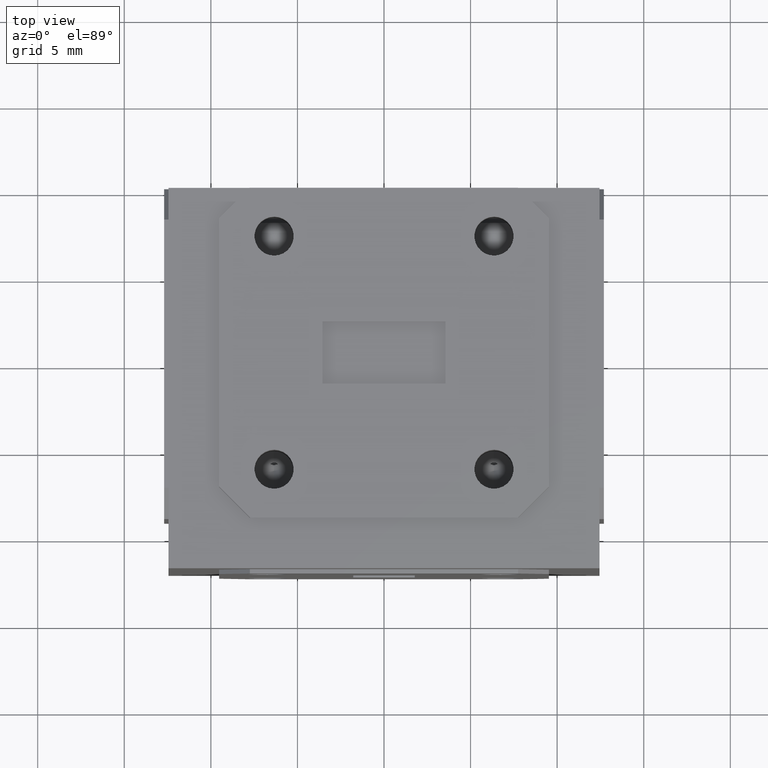
[diagram: clean part render]
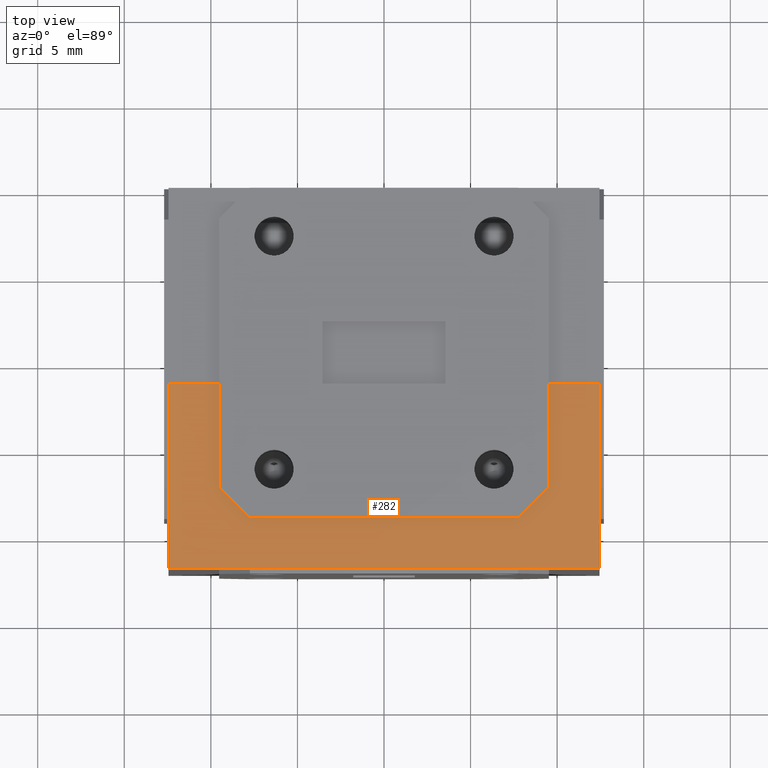
[diagram: same view with one face highlighted and labeled with its STEP entity id]
A machine part, top view. The second image highlights one B-rep face of the part: STEP entity #282.
In plain terms, the highlighted planar face has unit normal (0, 0, 1).
Its self-contained STEP definition (entity closure, byte-faithful):
#45 = DIRECTION ( 'NONE',  ( -1.000000000000000000, 6.307522524412201606E-31, 1.047444401652940007E-14 ) ) ;
#161 = ORIENTED_EDGE ( 'NONE', *, *, #6087, .F. ) ;
#282 = ADVANCED_FACE ( 'NONE', ( #11182 ), #8478, .T. ) ;
#592 = VERTEX_POINT ( 'NONE', #8239 ) ;
#864 = ORIENTED_EDGE ( 'NONE', *, *, #9682, .F. ) ;
#1044 = ORIENTED_EDGE ( 'NONE', *, *, #10362, .F. ) ;
#1047 = CARTESIAN_POINT ( 'NONE',  ( 0.3750000000000051625, -0.6799999999999999378, 0.4899999999999948841 ) ) ;
#1069 = CARTESIAN_POINT ( 'NONE',  ( 4.551959869445732857E-15, -0.8650000000000001021, 0.4899999999999988809 ) ) ;
#1585 = ORIENTED_EDGE ( 'NONE', *, *, #5801, .F. ) ;
#1673 = VECTOR ( 'NONE', #10962, 39.37007874015748143 ) ;
#1799 = VECTOR ( 'NONE', #5424, 39.37007874015748143 ) ;
#1800 = CARTESIAN_POINT ( 'NONE',  ( -0.4899999999999988809, -0.8650000000000001021, 0.4900000000000039879 ) ) ;
#1917 = VERTEX_POINT ( 'NONE', #2930 ) ;
#1941 = VERTEX_POINT ( 'NONE', #6431 ) ;
#2240 = LINE ( 'NONE', #10038, #10833 ) ;
#2371 = CARTESIAN_POINT ( 'NONE',  ( -0.4899999999999988809, -0.4450000000000001177, 0.4900000000000039324 ) ) ;
#2539 = CARTESIAN_POINT ( 'NONE',  ( 4.073886470554481124E-15, -0.4450000000000001177, 0.4899999999999988254 ) ) ;
#2773 = CARTESIAN_POINT ( 'NONE',  ( 0.5275000000000060751, -0.5274999999999984146, 0.4899999999999932743 ) ) ;
#2930 = CARTESIAN_POINT ( 'NONE',  ( -0.3749999999999950595, -0.6800000000000007150, 0.4900000000000028222 ) ) ;
#2934 = ORIENTED_EDGE ( 'NONE', *, *, #7658, .F. ) ;
#2948 = DIRECTION ( 'NONE',  ( -1.155557966632339870E-32, 1.000000000000000000, -5.551115123125780853E-17 ) ) ;
#3007 = CARTESIAN_POINT ( 'NONE',  ( 0.3750000000000051625, 0.000000000000000000, 0.4899999999999948286 ) ) ;
#3042 = CARTESIAN_POINT ( 'NONE',  ( 4.073886470554481124E-15, -0.4450000000000001177, 0.4899999999999988254 ) ) ;
#3055 = EDGE_CURVE ( 'NONE', #1941, #11176, #5212, .T. ) ;
#3354 = DIRECTION ( 'NONE',  ( 1.047444401652940007E-14, 5.551115123125780853E-17, 1.000000000000000000 ) ) ;
#3426 = LINE ( 'NONE', #2539, #5451 ) ;
#3535 = CARTESIAN_POINT ( 'NONE',  ( 0.4899999999999988809, -0.8650000000000001021, 0.4899999999999937739 ) ) ;
#3621 = VECTOR ( 'NONE', #6435, 39.37007874015748143 ) ;
#3855 = LINE ( 'NONE', #3007, #5799 ) ;
#4011 = EDGE_LOOP ( 'NONE', ( #1585, #5091, #7295, #10577, #161, #1044, #864, #2934, #10088, #4564 ) ) ;
#4124 = CARTESIAN_POINT ( 'NONE',  ( -0.4899999999999988809, 0.000000000000000000, 0.4900000000000039324 ) ) ;
#4159 = CARTESIAN_POINT ( 'NONE',  ( 5.132477568099394830E-15, 0.000000000000000000, 0.4899999999999988254 ) ) ;
#4183 = LINE ( 'NONE', #4124, #1673 ) ;
#4372 = CARTESIAN_POINT ( 'NONE',  ( 0.4899999999999988809, 0.000000000000000000, 0.4899999999999936628 ) ) ;
#4392 = DIRECTION ( 'NONE',  ( 0.7071067811865486830, -0.7071067811865462405, -7.367298081779712776E-15 ) ) ;
#4564 = ORIENTED_EDGE ( 'NONE', *, *, #5922, .F. ) ;
#4867 = VERTEX_POINT ( 'NONE', #2371 ) ;
#4928 = DIRECTION ( 'NONE',  ( -1.155557966632339870E-32, 1.000000000000000000, -5.551115123125780853E-17 ) ) ;
#4967 = DIRECTION ( 'NONE',  ( 1.000000000000000000, 0.000000000000000000, -1.047444401652940007E-14 ) ) ;
#5091 = ORIENTED_EDGE ( 'NONE', *, *, #8251, .F. ) ;
#5212 = LINE ( 'NONE', #4372, #6569 ) ;
#5424 = DIRECTION ( 'NONE',  ( -1.000000000000000000, -6.085938624263663106E-32, 1.047444401652940007E-14 ) ) ;
#5451 = VECTOR ( 'NONE', #10683, 39.37007874015748143 ) ;
#5486 = LINE ( 'NONE', #2773, #3621 ) ;
#5499 = LINE ( 'NONE', #6272, #6466 ) ;
#5799 = VECTOR ( 'NONE', #4928, 39.37007874015748143 ) ;
#5801 = EDGE_CURVE ( 'NONE', #7642, #4867, #4183, .T. ) ;
#5922 = EDGE_CURVE ( 'NONE', #4867, #10157, #3426, .T. ) ;
#6087 = EDGE_CURVE ( 'NONE', #7858, #8627, #3855, .T. ) ;
#6258 = LINE ( 'NONE', #1069, #1799 ) ;
#6272 = CARTESIAN_POINT ( 'NONE',  ( -0.3749999999999950595, 0.000000000000000000, 0.4900000000000027667 ) ) ;
#6431 = CARTESIAN_POINT ( 'NONE',  ( 0.4899999999999988809, -0.4450000000000001177, 0.4899999999999936628 ) ) ;
#6435 = DIRECTION ( 'NONE',  ( 0.7071067811865459074, 0.7071067811865492381, -7.445802704713873764E-15 ) ) ;
#6466 = VECTOR ( 'NONE', #2948, 39.37007874015748143 ) ;
#6569 = VECTOR ( 'NONE', #9701, 39.37007874015748143 ) ;
#7295 = ORIENTED_EDGE ( 'NONE', *, *, #3055, .F. ) ;
#7642 = VERTEX_POINT ( 'NONE', #1800 ) ;
#7658 = EDGE_CURVE ( 'NONE', #1917, #7958, #10389, .T. ) ;
#7681 = DIRECTION ( 'NONE',  ( 1.000000000000000000, -6.307522524412201606E-31, -1.047444401652940007E-14 ) ) ;
#7696 = CARTESIAN_POINT ( 'NONE',  ( -0.5274999999999945288, -0.5275000000000015232, 0.4900000000000043210 ) ) ;
#7858 = VERTEX_POINT ( 'NONE', #1047 ) ;
#7958 = VERTEX_POINT ( 'NONE', #8589 ) ;
#8239 = CARTESIAN_POINT ( 'NONE',  ( 0.3050000000000053224, -0.7500000000000002220, 0.4899999999999956612 ) ) ;
#8251 = EDGE_CURVE ( 'NONE', #11176, #7642, #6258, .T. ) ;
#8333 = LINE ( 'NONE', #3042, #10469 ) ;
#8478 = PLANE ( 'NONE',  #9040 ) ;
#8589 = CARTESIAN_POINT ( 'NONE',  ( -0.3049999999999950528, -0.7500000000000002220, 0.4900000000000021005 ) ) ;
#8627 = VERTEX_POINT ( 'NONE', #9585 ) ;
#8759 = EDGE_CURVE ( 'NONE', #1917, #10157, #5499, .T. ) ;
#9040 = AXIS2_PLACEMENT_3D ( 'NONE', #4159, #3354, #45 ) ;
#9245 = CARTESIAN_POINT ( 'NONE',  ( -0.3749999999999950595, -0.4450000000000001177, 0.4900000000000027667 ) ) ;
#9293 = EDGE_CURVE ( 'NONE', #8627, #1941, #8333, .T. ) ;
#9585 = CARTESIAN_POINT ( 'NONE',  ( 0.3750000000000051625, -0.4450000000000001177, 0.4899999999999948286 ) ) ;
#9611 = VECTOR ( 'NONE', #4392, 39.37007874015748854 ) ;
#9682 = EDGE_CURVE ( 'NONE', #7958, #592, #2240, .T. ) ;
#9701 = DIRECTION ( 'NONE',  ( -4.930380657631323784E-32, -1.000000000000000000, 5.551115123125780853E-17 ) ) ;
#10038 = CARTESIAN_POINT ( 'NONE',  ( 5.132477568099394830E-15, -0.7500000000000002220, 0.4899999999999988809 ) ) ;
#10088 = ORIENTED_EDGE ( 'NONE', *, *, #8759, .T. ) ;
#10157 = VERTEX_POINT ( 'NONE', #9245 ) ;
#10362 = EDGE_CURVE ( 'NONE', #592, #7858, #5486, .T. ) ;
#10389 = LINE ( 'NONE', #7696, #9611 ) ;
#10469 = VECTOR ( 'NONE', #4967, 39.37007874015748143 ) ;
#10577 = ORIENTED_EDGE ( 'NONE', *, *, #9293, .F. ) ;
#10683 = DIRECTION ( 'NONE',  ( 1.000000000000000000, 0.000000000000000000, -1.047444401652940007E-14 ) ) ;
#10833 = VECTOR ( 'NONE', #7681, 39.37007874015748143 ) ;
#10962 = DIRECTION ( 'NONE',  ( -1.155557966632339870E-32, 1.000000000000000000, -5.551115123125780853E-17 ) ) ;
#11176 = VERTEX_POINT ( 'NONE', #3535 ) ;
#11182 = FACE_OUTER_BOUND ( 'NONE', #4011, .T. ) ;